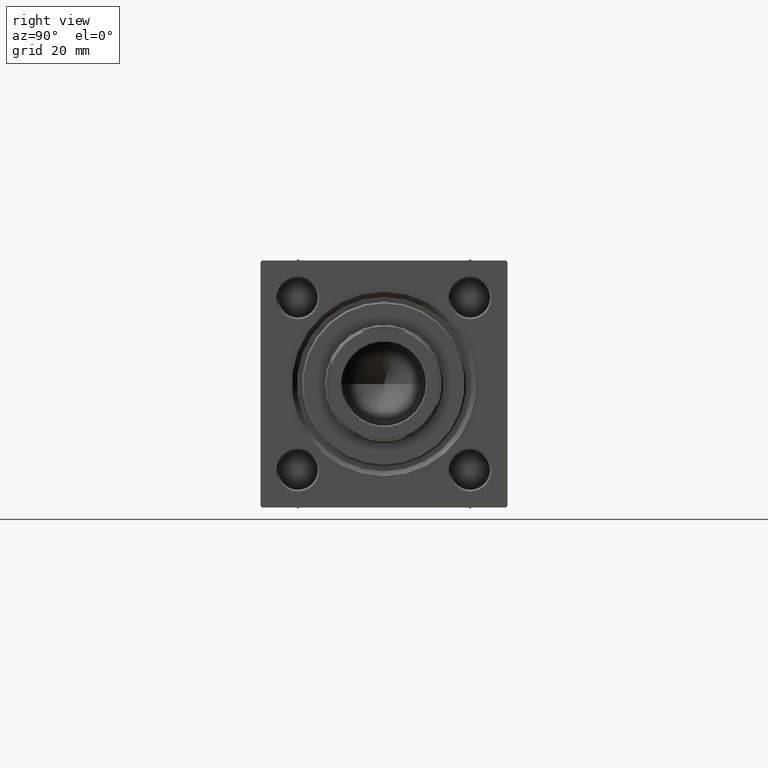
[diagram: clean part render]
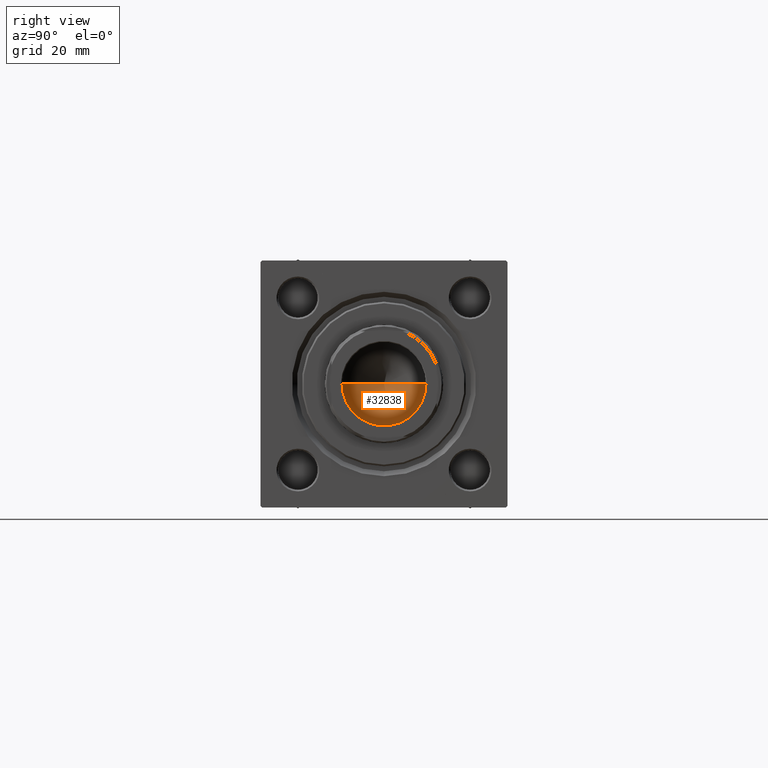
[diagram: same view with one face highlighted and labeled with its STEP entity id]
A machine part, right view. The second image highlights one B-rep face of the part: STEP entity #32838.
In plain terms, the highlighted conical surface has half-angle 59 deg.
Its self-contained STEP definition (entity closure, byte-faithful):
#196 = CARTESIAN_POINT ( 'NONE',  ( 12.74999999999998934, 0.000000000000000000, 97.00000000000001421 ) ) ;
#2102 = EDGE_CURVE ( 'NONE', #27970, #10163, #34735, .T. ) ;
#2850 = EDGE_CURVE ( 'NONE', #10163, #29082, #24851, .T. ) ;
#4789 = CARTESIAN_POINT ( 'NONE',  ( 12.74999999999998934, 0.000000000000000000, 97.00000000000001421 ) ) ;
#5387 = AXIS2_PLACEMENT_3D ( 'NONE', #9459, #24955, #49043 ) ;
#6097 = CARTESIAN_POINT ( 'NONE',  ( 0.000000000000000000, 0.000000000000000000, 97.00000000000001421 ) ) ;
#6815 = CARTESIAN_POINT ( 'NONE',  ( -12.74999999999998934, 1.561424668912873928E-15, 97.00000000000001421 ) ) ;
#9459 = CARTESIAN_POINT ( 'NONE',  ( 0.000000000000000000, 0.000000000000000000, 97.00000000000001421 ) ) ;
#10163 = VERTEX_POINT ( 'NONE', #4789 ) ;
#20853 = FACE_OUTER_BOUND ( 'NONE', #21460, .T. ) ;
#21351 = DIRECTION ( 'NONE',  ( 1.000000000000000000, 0.000000000000000000, 0.000000000000000000 ) ) ;
#21460 = EDGE_LOOP ( 'NONE', ( #27415, #41914, #49094 ) ) ;
#21480 = EDGE_CURVE ( 'NONE', #27970, #29082, #39416, .T. ) ;
#21842 = DIRECTION ( 'NONE',  ( -0.000000000000000000, -0.000000000000000000, 1.000000000000000000 ) ) ;
#23682 = DIRECTION ( 'NONE',  ( -0.8571673007021117785, 1.049727191138617956E-16, 0.5150380749100550437 ) ) ;
#24638 = CARTESIAN_POINT ( 'NONE',  ( -1.410643066818227497E-14, 0.000000000000000000, 89.33902710739862130 ) ) ;
#24851 = CIRCLE ( 'NONE', #5387, 12.74999999999998934 ) ;
#24955 = DIRECTION ( 'NONE',  ( -0.000000000000000000, -0.000000000000000000, 1.000000000000000000 ) ) ;
#25107 = AXIS2_PLACEMENT_3D ( 'NONE', #6097, #21842, #21351 ) ;
#25895 = CONICAL_SURFACE ( 'NONE', #25107, 12.74999999999998934, 1.029744258676653423 ) ;
#26347 = DIRECTION ( 'NONE',  ( 0.8571673007021117785, 0.000000000000000000, 0.5150380749100550437 ) ) ;
#27415 = ORIENTED_EDGE ( 'NONE', *, *, #21480, .F. ) ;
#27740 = CARTESIAN_POINT ( 'NONE',  ( -12.74999999999998934, 1.561424668912873928E-15, 97.00000000000001421 ) ) ;
#27970 = VERTEX_POINT ( 'NONE', #24638 ) ;
#29082 = VERTEX_POINT ( 'NONE', #6815 ) ;
#32838 = ADVANCED_FACE ( 'NONE', ( #20853 ), #25895, .F. ) ;
#33736 = VECTOR ( 'NONE', #26347, 1000.000000000000000 ) ;
#34237 = VECTOR ( 'NONE', #23682, 1000.000000000000000 ) ;
#34735 = LINE ( 'NONE', #196, #33736 ) ;
#39416 = LINE ( 'NONE', #27740, #34237 ) ;
#41914 = ORIENTED_EDGE ( 'NONE', *, *, #2102, .T. ) ;
#49043 = DIRECTION ( 'NONE',  ( 1.000000000000000000, 0.000000000000000000, 0.000000000000000000 ) ) ;
#49094 = ORIENTED_EDGE ( 'NONE', *, *, #2850, .T. ) ;